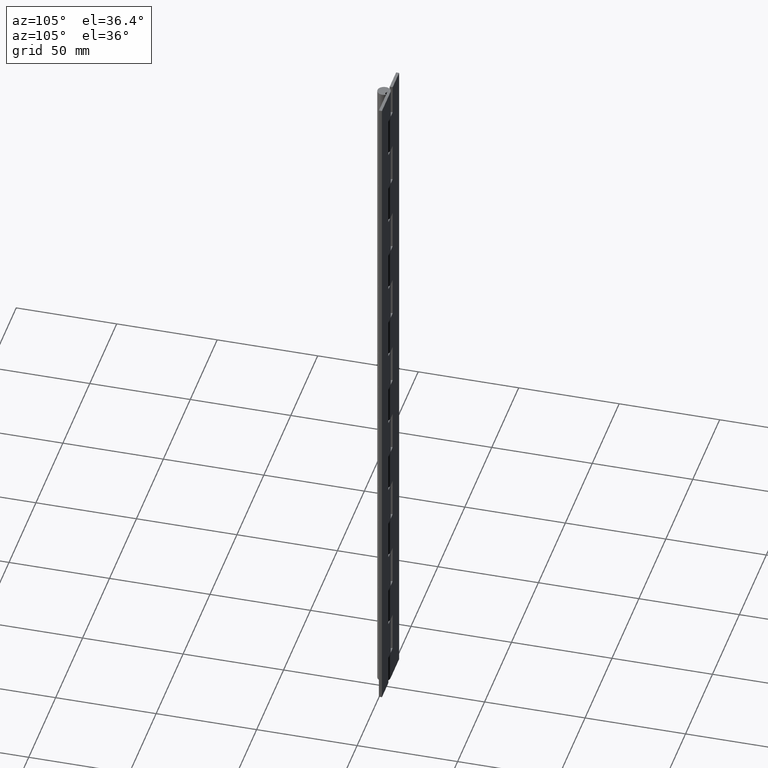
[diagram: clean part render]
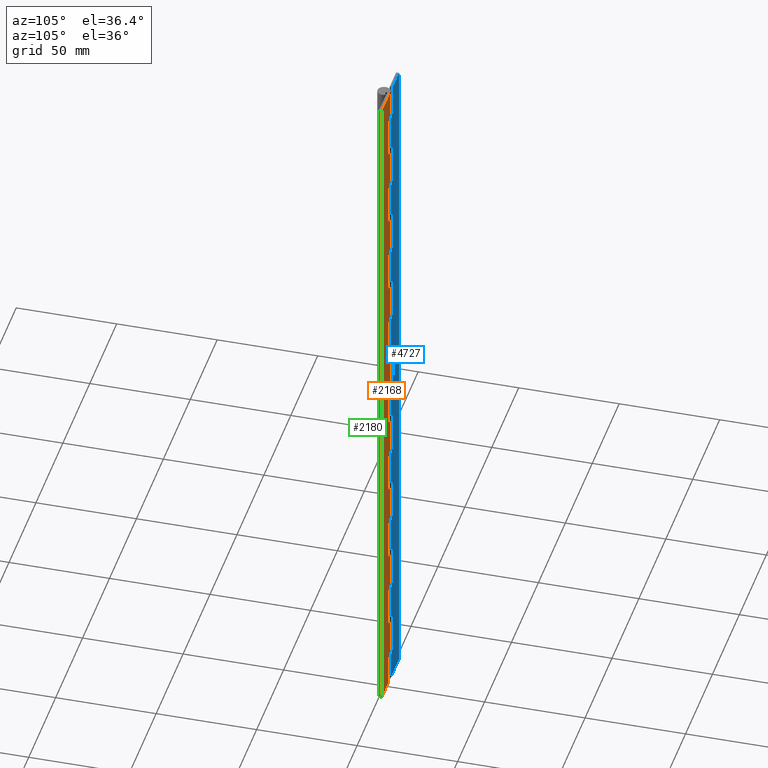
[diagram: same view with three faces highlighted in distinct colors, each labeled with its STEP entity id]
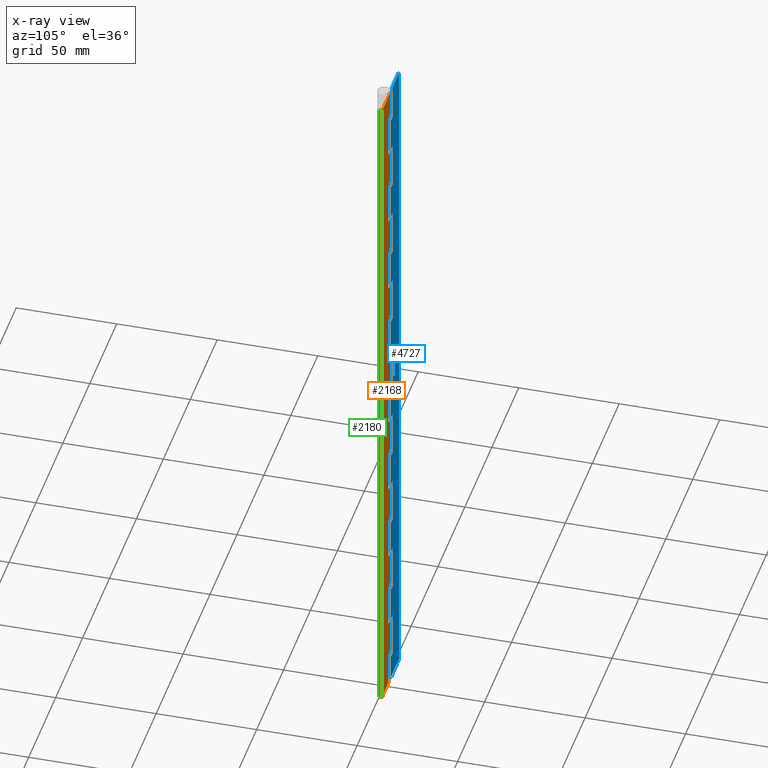
[diagram: x-ray of the same camera — body ghosted, the three highlighted faces saturated]
A machine part, auxiliary view with three faces highlighted in distinct colors.
The next image is the same camera in x-ray (body ghosted, the three faces saturated) — at least one of them is partly hidden behind the body in this view.
Their STEP definitions:

[orange] entity #2168 — the highlighted face is a freeform B-spline surface patch.
#302=CARTESIAN_POINT('',(4.0,3.250000000000000,14.999991999999960));
#303=VERTEX_POINT('',#302);
#309=CARTESIAN_POINT('',(4.0,3.250000000000000,0.0));
#310=VERTEX_POINT('',#309);
#311=CARTESIAN_POINT('',(4.0,3.250000000000000,14.999991999999960));
#312=CARTESIAN_POINT('',(4.0,3.250000000000000,0.0));
#313=QUASI_UNIFORM_CURVE('',1,(#311,#312),.UNSPECIFIED.,.F.,.U.);
#314=EDGE_CURVE('',#303,#310,#313,.T.);
#336=CARTESIAN_POINT('',(0.0,3.250000000000000,14.999991999999960));
#337=VERTEX_POINT('',#336);
#338=CARTESIAN_POINT('',(0.0,3.250000000000000,14.999991999999960));
#339=CARTESIAN_POINT('',(4.0,3.250000000000000,14.999991999999960));
#340=QUASI_UNIFORM_CURVE('',1,(#338,#339),.UNSPECIFIED.,.F.,.U.);
#341=EDGE_CURVE('',#337,#303,#340,.T.);
#406=CARTESIAN_POINT('',(0.0,3.250000000000000,54.999991999999899));
#407=VERTEX_POINT('',#406);
#408=CARTESIAN_POINT('',(4.0,3.250000000000000,54.999991999999899));
#409=VERTEX_POINT('',#408);
#410=CARTESIAN_POINT('',(0.0,3.250000000000000,54.999991999999899));
#411=CARTESIAN_POINT('',(4.0,3.250000000000000,54.999991999999899));
#412=QUASI_UNIFORM_CURVE('',1,(#410,#411),.UNSPECIFIED.,.F.,.U.);
#413=EDGE_CURVE('',#407,#409,#412,.T.);
#486=CARTESIAN_POINT('',(0.0,3.250000000000000,34.999991999999800));
#487=VERTEX_POINT('',#486);
#542=CARTESIAN_POINT('',(4.0,3.250000000000000,34.999991999999800));
#543=VERTEX_POINT('',#542);
#549=CARTESIAN_POINT('',(4.0,3.250000000000000,34.999991999999800));
#550=CARTESIAN_POINT('',(0.0,3.250000000000000,34.999991999999800));
#551=QUASI_UNIFORM_CURVE('',1,(#549,#550),.UNSPECIFIED.,.F.,.U.);
#552=EDGE_CURVE('',#543,#487,#551,.T.);
#563=CARTESIAN_POINT('',(4.0,3.250000000000000,54.999991999999899));
#564=CARTESIAN_POINT('',(4.0,3.250000000000000,34.999991999999800));
#565=QUASI_UNIFORM_CURVE('',1,(#563,#564),.UNSPECIFIED.,.F.,.U.);
#566=EDGE_CURVE('',#409,#543,#565,.T.);
#582=CARTESIAN_POINT('',(0.0,3.250000000000000,94.999992000000006));
#583=VERTEX_POINT('',#582);
#584=CARTESIAN_POINT('',(4.0,3.250000000000000,94.999992000000006));
#585=VERTEX_POINT('',#584);
#586=CARTESIAN_POINT('',(0.0,3.250000000000000,94.999992000000006));
#587=CARTESIAN_POINT('',(4.0,3.250000000000000,94.999992000000006));
#588=QUASI_UNIFORM_CURVE('',1,(#586,#587),.UNSPECIFIED.,.F.,.U.);
#589=EDGE_CURVE('',#583,#585,#588,.T.);
#662=CARTESIAN_POINT('',(0.0,3.250000000000000,74.999991999999892));
#663=VERTEX_POINT('',#662);
#718=CARTESIAN_POINT('',(4.0,3.250000000000000,74.999991999999892));
#719=VERTEX_POINT('',#718);
#725=CARTESIAN_POINT('',(4.0,3.250000000000000,74.999991999999892));
#726=CARTESIAN_POINT('',(0.0,3.250000000000000,74.999991999999892));
#727=QUASI_UNIFORM_CURVE('',1,(#725,#726),.UNSPECIFIED.,.F.,.U.);
#728=EDGE_CURVE('',#719,#663,#727,.T.);
#739=CARTESIAN_POINT('',(4.0,3.250000000000000,94.999992000000006));
#740=CARTESIAN_POINT('',(4.0,3.250000000000000,74.999991999999892));
#741=QUASI_UNIFORM_CURVE('',1,(#739,#740),.UNSPECIFIED.,.F.,.U.);
#742=EDGE_CURVE('',#585,#719,#741,.T.);
#758=CARTESIAN_POINT('',(0.0,3.250000000000000,134.999991999999990));
#759=VERTEX_POINT('',#758);
#760=CARTESIAN_POINT('',(4.0,3.250000000000000,134.999991999999990));
#761=VERTEX_POINT('',#760);
#762=CARTESIAN_POINT('',(0.0,3.250000000000000,134.999991999999990));
#763=CARTESIAN_POINT('',(4.0,3.250000000000000,134.999991999999990));
#764=QUASI_UNIFORM_CURVE('',1,(#762,#763),.UNSPECIFIED.,.F.,.U.);
#765=EDGE_CURVE('',#759,#761,#764,.T.);
#838=CARTESIAN_POINT('',(0.0,3.250000000000000,114.999991999999810));
#839=VERTEX_POINT('',#838);
#894=CARTESIAN_POINT('',(4.0,3.250000000000000,114.999991999999810));
#895=VERTEX_POINT('',#894);
#901=CARTESIAN_POINT('',(4.0,3.250000000000000,114.999991999999810));
#902=CARTESIAN_POINT('',(0.0,3.250000000000000,114.999991999999810));
#903=QUASI_UNIFORM_CURVE('',1,(#901,#902),.UNSPECIFIED.,.F.,.U.);
#904=EDGE_CURVE('',#895,#839,#903,.T.);
#915=CARTESIAN_POINT('',(4.0,3.250000000000000,134.999991999999990));
#916=CARTESIAN_POINT('',(4.0,3.250000000000000,114.999991999999810));
#917=QUASI_UNIFORM_CURVE('',1,(#915,#916),.UNSPECIFIED.,.F.,.U.);
#918=EDGE_CURVE('',#761,#895,#917,.T.);
#934=CARTESIAN_POINT('',(0.0,3.250000000000000,174.999991999999990));
#935=VERTEX_POINT('',#934);
#936=CARTESIAN_POINT('',(4.0,3.250000000000000,174.999991999999990));
#937=VERTEX_POINT('',#936);
#938=CARTESIAN_POINT('',(0.0,3.250000000000000,174.999991999999990));
#939=CARTESIAN_POINT('',(4.0,3.250000000000000,174.999991999999990));
#940=QUASI_UNIFORM_CURVE('',1,(#938,#939),.UNSPECIFIED.,.F.,.U.);
#941=EDGE_CURVE('',#935,#937,#940,.T.);
#1014=CARTESIAN_POINT('',(0.0,3.250000000000000,154.999991999999990));
#1015=VERTEX_POINT('',#1014);
#1070=CARTESIAN_POINT('',(4.0,3.250000000000000,154.999991999999990));
#1071=VERTEX_POINT('',#1070);
#1077=CARTESIAN_POINT('',(4.0,3.250000000000000,154.999991999999990));
#1078=CARTESIAN_POINT('',(0.0,3.250000000000000,154.999991999999990));
#1079=QUASI_UNIFORM_CURVE('',1,(#1077,#1078),.UNSPECIFIED.,.F.,.U.);
#1080=EDGE_CURVE('',#1071,#1015,#1079,.T.);
#1091=CARTESIAN_POINT('',(4.0,3.250000000000000,174.999991999999990));
#1092=CARTESIAN_POINT('',(4.0,3.250000000000000,154.999991999999990));
#1093=QUASI_UNIFORM_CURVE('',1,(#1091,#1092),.UNSPECIFIED.,.F.,.U.);
#1094=EDGE_CURVE('',#937,#1071,#1093,.T.);
#1110=CARTESIAN_POINT('',(0.0,3.250000000000000,214.999991999999990));
#1111=VERTEX_POINT('',#1110);
#1112=CARTESIAN_POINT('',(4.0,3.250000000000000,214.999991999999990));
#1113=VERTEX_POINT('',#1112);
#1114=CARTESIAN_POINT('',(0.0,3.250000000000000,214.999991999999990));
#1115=CARTESIAN_POINT('',(4.0,3.250000000000000,214.999991999999990));
#1116=QUASI_UNIFORM_CURVE('',1,(#1114,#1115),.UNSPECIFIED.,.F.,.U.);
#1117=EDGE_CURVE('',#1111,#1113,#1116,.T.);
#1190=CARTESIAN_POINT('',(0.0,3.250000000000000,194.999991999999990));
#1191=VERTEX_POINT('',#1190);
#1246=CARTESIAN_POINT('',(4.0,3.250000000000000,194.999991999999990));
#1247=VERTEX_POINT('',#1246);
#1253=CARTESIAN_POINT('',(4.0,3.250000000000000,194.999991999999990));
#1254=CARTESIAN_POINT('',(0.0,3.250000000000000,194.999991999999990));
#1255=QUASI_UNIFORM_CURVE('',1,(#1253,#1254),.UNSPECIFIED.,.F.,.U.);
#1256=EDGE_CURVE('',#1247,#1191,#1255,.T.);
#1267=CARTESIAN_POINT('',(4.0,3.250000000000000,214.999991999999990));
#1268=CARTESIAN_POINT('',(4.0,3.250000000000000,194.999991999999990));
#1269=QUASI_UNIFORM_CURVE('',1,(#1267,#1268),.UNSPECIFIED.,.F.,.U.);
#1270=EDGE_CURVE('',#1113,#1247,#1269,.T.);
#1286=CARTESIAN_POINT('',(0.0,3.250000000000000,254.999991999999990));
#1287=VERTEX_POINT('',#1286);
#1288=CARTESIAN_POINT('',(4.0,3.250000000000000,254.999991999999990));
#1289=VERTEX_POINT('',#1288);
#1290=CARTESIAN_POINT('',(0.0,3.250000000000000,254.999991999999990));
#1291=CARTESIAN_POINT('',(4.0,3.250000000000000,254.999991999999990));
#1292=QUASI_UNIFORM_CURVE('',1,(#1290,#1291),.UNSPECIFIED.,.F.,.U.);
#1293=EDGE_CURVE('',#1287,#1289,#1292,.T.);
#1366=CARTESIAN_POINT('',(0.0,3.250000000000000,234.999991999999990));
#1367=VERTEX_POINT('',#1366);
#1422=CARTESIAN_POINT('',(4.0,3.250000000000000,234.999991999999990));
#1423=VERTEX_POINT('',#1422);
#1429=CARTESIAN_POINT('',(4.0,3.250000000000000,234.999991999999990));
#1430=CARTESIAN_POINT('',(0.0,3.250000000000000,234.999991999999990));
#1431=QUASI_UNIFORM_CURVE('',1,(#1429,#1430),.UNSPECIFIED.,.F.,.U.);
#1432=EDGE_CURVE('',#1423,#1367,#1431,.T.);
#1443=CARTESIAN_POINT('',(4.0,3.250000000000000,254.999991999999990));
#1444=CARTESIAN_POINT('',(4.0,3.250000000000000,234.999991999999990));
#1445=QUASI_UNIFORM_CURVE('',1,(#1443,#1444),.UNSPECIFIED.,.F.,.U.);
#1446=EDGE_CURVE('',#1289,#1423,#1445,.T.);
#1462=CARTESIAN_POINT('',(0.0,3.250000000000000,294.999992000000020));
#1463=VERTEX_POINT('',#1462);
#1464=CARTESIAN_POINT('',(4.0,3.250000000000000,294.999992000000020));
#1465=VERTEX_POINT('',#1464);
#1466=CARTESIAN_POINT('',(0.0,3.250000000000000,294.999992000000020));
#1467=CARTESIAN_POINT('',(4.0,3.250000000000000,294.999992000000020));
#1468=QUASI_UNIFORM_CURVE('',1,(#1466,#1467),.UNSPECIFIED.,.F.,.U.);
#1469=EDGE_CURVE('',#1463,#1465,#1468,.T.);
#1542=CARTESIAN_POINT('',(0.0,3.250000000000000,274.999992000000020));
#1543=VERTEX_POINT('',#1542);
#1598=CARTESIAN_POINT('',(4.0,3.250000000000000,274.999992000000020));
#1599=VERTEX_POINT('',#1598);
#1605=CARTESIAN_POINT('',(4.0,3.250000000000000,274.999992000000020));
#1606=CARTESIAN_POINT('',(0.0,3.250000000000000,274.999992000000020));
#1607=QUASI_UNIFORM_CURVE('',1,(#1605,#1606),.UNSPECIFIED.,.F.,.U.);
#1608=EDGE_CURVE('',#1599,#1543,#1607,.T.);
#1619=CARTESIAN_POINT('',(4.0,3.250000000000000,294.999992000000020));
#1620=CARTESIAN_POINT('',(4.0,3.250000000000000,274.999992000000020));
#1621=QUASI_UNIFORM_CURVE('',1,(#1619,#1620),.UNSPECIFIED.,.F.,.U.);
#1622=EDGE_CURVE('',#1465,#1599,#1621,.T.);
#1638=CARTESIAN_POINT('',(0.0,3.250000000000000,334.999992000000020));
#1639=VERTEX_POINT('',#1638);
#1640=CARTESIAN_POINT('',(4.0,3.250000000000000,334.999992000000020));
#1641=VERTEX_POINT('',#1640);
#1642=CARTESIAN_POINT('',(0.0,3.250000000000000,334.999992000000020));
#1643=CARTESIAN_POINT('',(4.0,3.250000000000000,334.999992000000020));
#1644=QUASI_UNIFORM_CURVE('',1,(#1642,#1643),.UNSPECIFIED.,.F.,.U.);
#1645=EDGE_CURVE('',#1639,#1641,#1644,.T.);
#1718=CARTESIAN_POINT('',(0.0,3.250000000000000,314.999992000000020));
#1719=VERTEX_POINT('',#1718);
#1774=CARTESIAN_POINT('',(4.0,3.250000000000000,314.999992000000020));
#1775=VERTEX_POINT('',#1774);
#1781=CARTESIAN_POINT('',(4.0,3.250000000000000,314.999992000000020));
#1782=CARTESIAN_POINT('',(0.0,3.250000000000000,314.999992000000020));
#1783=QUASI_UNIFORM_CURVE('',1,(#1781,#1782),.UNSPECIFIED.,.F.,.U.);
#1784=EDGE_CURVE('',#1775,#1719,#1783,.T.);
#1795=CARTESIAN_POINT('',(4.0,3.250000000000000,334.999992000000020));
#1796=CARTESIAN_POINT('',(4.0,3.250000000000000,314.999992000000020));
#1797=QUASI_UNIFORM_CURVE('',1,(#1795,#1796),.UNSPECIFIED.,.F.,.U.);
#1798=EDGE_CURVE('',#1641,#1775,#1797,.T.);
#1822=CARTESIAN_POINT('',(16.0,3.250000000000000,0.0));
#1823=VERTEX_POINT('',#1822);
#1824=CARTESIAN_POINT('',(16.0,3.250000000000000,0.0));
#1825=CARTESIAN_POINT('',(4.0,3.250000000000000,0.0));
#1826=QUASI_UNIFORM_CURVE('',1,(#1824,#1825),.UNSPECIFIED.,.F.,.U.);
#1827=EDGE_CURVE('',#1823,#310,#1826,.T.);
#1844=CARTESIAN_POINT('',(16.0,3.250000000000000,349.999992000000020));
#1845=VERTEX_POINT('',#1844);
#1851=CARTESIAN_POINT('',(0.0,3.250000000000000,349.999992000000020));
#1852=VERTEX_POINT('',#1851);
#1853=CARTESIAN_POINT('',(16.0,3.250000000000000,349.999992000000020));
#1854=CARTESIAN_POINT('',(0.0,3.250000000000000,349.999992000000020));
#1855=QUASI_UNIFORM_CURVE('',1,(#1853,#1854),.UNSPECIFIED.,.F.,.U.);
#1856=EDGE_CURVE('',#1845,#1852,#1855,.T.);
#2072=CARTESIAN_POINT('',(0.0,3.250000000000000,34.999991999999800));
#2073=CARTESIAN_POINT('',(0.0,3.250000000000000,14.999991999999960));
#2074=QUASI_UNIFORM_CURVE('',1,(#2072,#2073),.UNSPECIFIED.,.F.,.U.);
#2075=EDGE_CURVE('',#487,#337,#2074,.T.);
#2087=CARTESIAN_POINT('',(-0.799199968988895,3.250000000000000,367.482500778680670));
#2088=CARTESIAN_POINT('',(-0.799199968988895,3.250000000000000,-17.482508778680579));
#2089=CARTESIAN_POINT('',(16.799200398142339,3.250000000000000,367.482500778680670));
#2090=CARTESIAN_POINT('',(16.799200398142339,3.250000000000000,-17.482508778680579));
#2091=B_SPLINE_SURFACE_WITH_KNOTS('',1,1,((#2087,#2089),(#2088,#2090)),.UNSPECIFIED.,.F.,.F.,.U.,(2,2),(2,2),(0.0,384.965009557361330),(0.0,17.598400367131230),.UNSPECIFIED.);
#2092=ORIENTED_EDGE('',*,*,#1827,.T.);
#2093=ORIENTED_EDGE('',*,*,#314,.F.);
#2094=ORIENTED_EDGE('',*,*,#341,.F.);
#2095=ORIENTED_EDGE('',*,*,#2075,.F.);
#2096=ORIENTED_EDGE('',*,*,#552,.F.);
#2097=ORIENTED_EDGE('',*,*,#566,.F.);
#2098=ORIENTED_EDGE('',*,*,#413,.F.);
#2099=CARTESIAN_POINT('',(0.0,3.250000000000000,74.999991999999892));
#2100=CARTESIAN_POINT('',(0.0,3.250000000000000,54.999991999999899));
#2101=QUASI_UNIFORM_CURVE('',1,(#2099,#2100),.UNSPECIFIED.,.F.,.U.);
#2102=EDGE_CURVE('',#663,#407,#2101,.T.);
#2103=ORIENTED_EDGE('',*,*,#2102,.F.);
#2104=ORIENTED_EDGE('',*,*,#728,.F.);
#2105=ORIENTED_EDGE('',*,*,#742,.F.);
#2106=ORIENTED_EDGE('',*,*,#589,.F.);
#2107=CARTESIAN_POINT('',(0.0,3.250000000000000,114.999991999999810));
#2108=CARTESIAN_POINT('',(0.0,3.250000000000000,94.999992000000006));
#2109=QUASI_UNIFORM_CURVE('',1,(#2107,#2108),.UNSPECIFIED.,.F.,.U.);
#2110=EDGE_CURVE('',#839,#583,#2109,.T.);
#2111=ORIENTED_EDGE('',*,*,#2110,.F.);
#2112=ORIENTED_EDGE('',*,*,#904,.F.);
#2113=ORIENTED_EDGE('',*,*,#918,.F.);
#2114=ORIENTED_EDGE('',*,*,#765,.F.);
#2115=CARTESIAN_POINT('',(0.0,3.250000000000000,154.999991999999990));
#2116=CARTESIAN_POINT('',(0.0,3.250000000000000,134.999991999999990));
#2117=QUASI_UNIFORM_CURVE('',1,(#2115,#2116),.UNSPECIFIED.,.F.,.U.);
#2118=EDGE_CURVE('',#1015,#759,#2117,.T.);
#2119=ORIENTED_EDGE('',*,*,#2118,.F.);
#2120=ORIENTED_EDGE('',*,*,#1080,.F.);
#2121=ORIENTED_EDGE('',*,*,#1094,.F.);
#2122=ORIENTED_EDGE('',*,*,#941,.F.);
#2123=CARTESIAN_POINT('',(0.0,3.250000000000000,194.999991999999990));
#2124=CARTESIAN_POINT('',(0.0,3.250000000000000,174.999991999999990));
#2125=QUASI_UNIFORM_CURVE('',1,(#2123,#2124),.UNSPECIFIED.,.F.,.U.);
#2126=EDGE_CURVE('',#1191,#935,#2125,.T.);
#2127=ORIENTED_EDGE('',*,*,#2126,.F.);
#2128=ORIENTED_EDGE('',*,*,#1256,.F.);
#2129=ORIENTED_EDGE('',*,*,#1270,.F.);
#2130=ORIENTED_EDGE('',*,*,#1117,.F.);
#2131=CARTESIAN_POINT('',(0.0,3.250000000000000,234.999991999999990));
#2132=CARTESIAN_POINT('',(0.0,3.250000000000000,214.999991999999990));
#2133=QUASI_UNIFORM_CURVE('',1,(#2131,#2132),.UNSPECIFIED.,.F.,.U.);
#2134=EDGE_CURVE('',#1367,#1111,#2133,.T.);
#2135=ORIENTED_EDGE('',*,*,#2134,.F.);
#2136=ORIENTED_EDGE('',*,*,#1432,.F.);
#2137=ORIENTED_EDGE('',*,*,#1446,.F.);
#2138=ORIENTED_EDGE('',*,*,#1293,.F.);
#2139=CARTESIAN_POINT('',(0.0,3.250000000000000,274.999992000000020));
#2140=CARTESIAN_POINT('',(0.0,3.250000000000000,254.999991999999990));
#2141=QUASI_UNIFORM_CURVE('',1,(#2139,#2140),.UNSPECIFIED.,.F.,.U.);
#2142=EDGE_CURVE('',#1543,#1287,#2141,.T.);
#2143=ORIENTED_EDGE('',*,*,#2142,.F.);
#2144=ORIENTED_EDGE('',*,*,#1608,.F.);
#2145=ORIENTED_EDGE('',*,*,#1622,.F.);
#2146=ORIENTED_EDGE('',*,*,#1469,.F.);
#2147=CARTESIAN_POINT('',(0.0,3.250000000000000,314.999992000000020));
#2148=CARTESIAN_POINT('',(0.0,3.250000000000000,294.999992000000020));
#2149=QUASI_UNIFORM_CURVE('',1,(#2147,#2148),.UNSPECIFIED.,.F.,.U.);
#2150=EDGE_CURVE('',#1719,#1463,#2149,.T.);
#2151=ORIENTED_EDGE('',*,*,#2150,.F.);
#2152=ORIENTED_EDGE('',*,*,#1784,.F.);
#2153=ORIENTED_EDGE('',*,*,#1798,.F.);
#2154=ORIENTED_EDGE('',*,*,#1645,.F.);
#2155=CARTESIAN_POINT('',(0.0,3.250000000000000,349.999992000000020));
#2156=CARTESIAN_POINT('',(0.0,3.250000000000000,334.999992000000020));
#2157=QUASI_UNIFORM_CURVE('',1,(#2155,#2156),.UNSPECIFIED.,.F.,.U.);
#2158=EDGE_CURVE('',#1852,#1639,#2157,.T.);
#2159=ORIENTED_EDGE('',*,*,#2158,.F.);
#2160=ORIENTED_EDGE('',*,*,#1856,.F.);
#2161=CARTESIAN_POINT('',(16.0,3.250000000000000,349.999992000000020));
#2162=CARTESIAN_POINT('',(16.0,3.250000000000000,0.0));
#2163=QUASI_UNIFORM_CURVE('',1,(#2161,#2162),.UNSPECIFIED.,.F.,.U.);
#2164=EDGE_CURVE('',#1845,#1823,#2163,.T.);
#2165=ORIENTED_EDGE('',*,*,#2164,.T.);
#2166=EDGE_LOOP('',(#2092,#2093,#2094,#2095,#2096,#2097,#2098,#2103,#2104,#2105,#2106,#2111,#2112,#2113,#2114,#2119,#2120,#2121,#2122,#2127,#2128,#2129,#2130,#2135,#2136,#2137,#2138,#2143,#2144,#2145,#2146,#2151,#2152,#2153,#2154,#2159,#2160,#2165));
#2167=FACE_OUTER_BOUND('',#2166,.T.);
#2168=ADVANCED_FACE('',(#2167),#2091,.F.);

[blue] entity #4727 — the highlighted face is a freeform B-spline surface patch.
#2849=CARTESIAN_POINT('',(1.989998E-016,3.250000000000000,14.999991999999960));
#2850=VERTEX_POINT('',#2849);
#2870=CARTESIAN_POINT('',(-4.0,3.250000000000000,14.999991999999960));
#2871=VERTEX_POINT('',#2870);
#2872=CARTESIAN_POINT('',(1.989998E-016,3.250000000000000,14.999991999999960));
#2873=CARTESIAN_POINT('',(-4.0,3.250000000000000,14.999991999999960));
#2874=QUASI_UNIFORM_CURVE('',1,(#2872,#2873),.UNSPECIFIED.,.F.,.U.);
#2875=EDGE_CURVE('',#2850,#2871,#2874,.T.);
#2925=CARTESIAN_POINT('',(1.989998E-016,3.250000000000000,34.999991999999999));
#2926=VERTEX_POINT('',#2925);
#2983=CARTESIAN_POINT('',(-4.0,3.250000000000000,34.999991999999999));
#2984=VERTEX_POINT('',#2983);
#2990=CARTESIAN_POINT('',(-4.0,3.250000000000000,34.999991999999999));
#2991=CARTESIAN_POINT('',(1.989998E-016,3.250000000000000,34.999991999999999));
#2992=QUASI_UNIFORM_CURVE('',1,(#2990,#2991),.UNSPECIFIED.,.F.,.U.);
#2993=EDGE_CURVE('',#2984,#2926,#2992,.T.);
#3004=CARTESIAN_POINT('',(-4.0,3.250000000000000,14.999991999999960));
#3005=CARTESIAN_POINT('',(-4.0,3.250000000000000,34.999991999999999));
#3006=QUASI_UNIFORM_CURVE('',1,(#3004,#3005),.UNSPECIFIED.,.F.,.U.);
#3007=EDGE_CURVE('',#2871,#2984,#3006,.T.);
#3025=CARTESIAN_POINT('',(1.989998E-016,3.250000000000000,54.999991999999899));
#3026=VERTEX_POINT('',#3025);
#3046=CARTESIAN_POINT('',(-4.0,3.250000000000000,54.999991999999899));
#3047=VERTEX_POINT('',#3046);
#3048=CARTESIAN_POINT('',(1.989998E-016,3.250000000000000,54.999991999999899));
#3049=CARTESIAN_POINT('',(-4.0,3.250000000000000,54.999991999999899));
#3050=QUASI_UNIFORM_CURVE('',1,(#3048,#3049),.UNSPECIFIED.,.F.,.U.);
#3051=EDGE_CURVE('',#3026,#3047,#3050,.T.);
#3101=CARTESIAN_POINT('',(1.989998E-016,3.250000000000000,74.999992000000006));
#3102=VERTEX_POINT('',#3101);
#3159=CARTESIAN_POINT('',(-4.0,3.250000000000000,74.999992000000006));
#3160=VERTEX_POINT('',#3159);
#3166=CARTESIAN_POINT('',(-4.0,3.250000000000000,74.999992000000006));
#3167=CARTESIAN_POINT('',(1.989998E-016,3.250000000000000,74.999992000000006));
#3168=QUASI_UNIFORM_CURVE('',1,(#3166,#3167),.UNSPECIFIED.,.F.,.U.);
#3169=EDGE_CURVE('',#3160,#3102,#3168,.T.);
#3180=CARTESIAN_POINT('',(-4.0,3.250000000000000,54.999991999999899));
#3181=CARTESIAN_POINT('',(-4.0,3.250000000000000,74.999992000000006));
#3182=QUASI_UNIFORM_CURVE('',1,(#3180,#3181),.UNSPECIFIED.,.F.,.U.);
#3183=EDGE_CURVE('',#3047,#3160,#3182,.T.);
#3201=CARTESIAN_POINT('',(1.989998E-016,3.250000000000000,94.999992000000006));
#3202=VERTEX_POINT('',#3201);
#3222=CARTESIAN_POINT('',(-4.0,3.250000000000000,94.999992000000006));
#3223=VERTEX_POINT('',#3222);
#3224=CARTESIAN_POINT('',(1.989998E-016,3.250000000000000,94.999992000000006));
#3225=CARTESIAN_POINT('',(-4.0,3.250000000000000,94.999992000000006));
#3226=QUASI_UNIFORM_CURVE('',1,(#3224,#3225),.UNSPECIFIED.,.F.,.U.);
#3227=EDGE_CURVE('',#3202,#3223,#3226,.T.);
#3277=CARTESIAN_POINT('',(1.989998E-016,3.250000000000000,114.999992000000010));
#3278=VERTEX_POINT('',#3277);
#3335=CARTESIAN_POINT('',(-4.0,3.250000000000000,114.999992000000010));
#3336=VERTEX_POINT('',#3335);
#3342=CARTESIAN_POINT('',(-4.0,3.250000000000000,114.999992000000010));
#3343=CARTESIAN_POINT('',(1.989998E-016,3.250000000000000,114.999992000000010));
#3344=QUASI_UNIFORM_CURVE('',1,(#3342,#3343),.UNSPECIFIED.,.F.,.U.);
#3345=EDGE_CURVE('',#3336,#3278,#3344,.T.);
#3356=CARTESIAN_POINT('',(-4.0,3.250000000000000,94.999992000000006));
#3357=CARTESIAN_POINT('',(-4.0,3.250000000000000,114.999992000000010));
#3358=QUASI_UNIFORM_CURVE('',1,(#3356,#3357),.UNSPECIFIED.,.F.,.U.);
#3359=EDGE_CURVE('',#3223,#3336,#3358,.T.);
#3377=CARTESIAN_POINT('',(1.989998E-016,3.250000000000000,134.999991999999990));
#3378=VERTEX_POINT('',#3377);
#3398=CARTESIAN_POINT('',(-4.0,3.250000000000000,134.999991999999990));
#3399=VERTEX_POINT('',#3398);
#3400=CARTESIAN_POINT('',(1.989998E-016,3.250000000000000,134.999991999999990));
#3401=CARTESIAN_POINT('',(-4.0,3.250000000000000,134.999991999999990));
#3402=QUASI_UNIFORM_CURVE('',1,(#3400,#3401),.UNSPECIFIED.,.F.,.U.);
#3403=EDGE_CURVE('',#3378,#3399,#3402,.T.);
#3453=CARTESIAN_POINT('',(1.989998E-016,3.250000000000000,154.999991999999990));
#3454=VERTEX_POINT('',#3453);
#3511=CARTESIAN_POINT('',(-4.0,3.250000000000000,154.999991999999990));
#3512=VERTEX_POINT('',#3511);
#3518=CARTESIAN_POINT('',(-4.0,3.250000000000000,154.999991999999990));
#3519=CARTESIAN_POINT('',(1.989998E-016,3.250000000000000,154.999991999999990));
#3520=QUASI_UNIFORM_CURVE('',1,(#3518,#3519),.UNSPECIFIED.,.F.,.U.);
#3521=EDGE_CURVE('',#3512,#3454,#3520,.T.);
#3532=CARTESIAN_POINT('',(-4.0,3.250000000000000,134.999991999999990));
#3533=CARTESIAN_POINT('',(-4.0,3.250000000000000,154.999991999999990));
#3534=QUASI_UNIFORM_CURVE('',1,(#3532,#3533),.UNSPECIFIED.,.F.,.U.);
#3535=EDGE_CURVE('',#3399,#3512,#3534,.T.);
#3553=CARTESIAN_POINT('',(1.989998E-016,3.250000000000000,174.999991999999990));
#3554=VERTEX_POINT('',#3553);
#3574=CARTESIAN_POINT('',(-4.0,3.250000000000000,174.999991999999990));
#3575=VERTEX_POINT('',#3574);
#3576=CARTESIAN_POINT('',(1.989998E-016,3.250000000000000,174.999991999999990));
#3577=CARTESIAN_POINT('',(-4.0,3.250000000000000,174.999991999999990));
#3578=QUASI_UNIFORM_CURVE('',1,(#3576,#3577),.UNSPECIFIED.,.F.,.U.);
#3579=EDGE_CURVE('',#3554,#3575,#3578,.T.);
#3629=CARTESIAN_POINT('',(1.989998E-016,3.250000000000000,194.999991999999990));
#3630=VERTEX_POINT('',#3629);
#3687=CARTESIAN_POINT('',(-4.0,3.250000000000000,194.999991999999990));
#3688=VERTEX_POINT('',#3687);
#3694=CARTESIAN_POINT('',(-4.0,3.250000000000000,194.999991999999990));
#3695=CARTESIAN_POINT('',(1.989998E-016,3.250000000000000,194.999991999999990));
#3696=QUASI_UNIFORM_CURVE('',1,(#3694,#3695),.UNSPECIFIED.,.F.,.U.);
#3697=EDGE_CURVE('',#3688,#3630,#3696,.T.);
#3708=CARTESIAN_POINT('',(-4.0,3.250000000000000,174.999991999999990));
#3709=CARTESIAN_POINT('',(-4.0,3.250000000000000,194.999991999999990));
#3710=QUASI_UNIFORM_CURVE('',1,(#3708,#3709),.UNSPECIFIED.,.F.,.U.);
#3711=EDGE_CURVE('',#3575,#3688,#3710,.T.);
#3729=CARTESIAN_POINT('',(1.989998E-016,3.250000000000000,214.999991999999990));
#3730=VERTEX_POINT('',#3729);
#3750=CARTESIAN_POINT('',(-4.0,3.250000000000000,214.999991999999990));
#3751=VERTEX_POINT('',#3750);
#3752=CARTESIAN_POINT('',(1.989998E-016,3.250000000000000,214.999991999999990));
#3753=CARTESIAN_POINT('',(-4.0,3.250000000000000,214.999991999999990));
#3754=QUASI_UNIFORM_CURVE('',1,(#3752,#3753),.UNSPECIFIED.,.F.,.U.);
#3755=EDGE_CURVE('',#3730,#3751,#3754,.T.);
#3805=CARTESIAN_POINT('',(1.989998E-016,3.250000000000000,234.999991999999990));
#3806=VERTEX_POINT('',#3805);
#3863=CARTESIAN_POINT('',(-4.0,3.250000000000000,234.999991999999990));
#3864=VERTEX_POINT('',#3863);
#3870=CARTESIAN_POINT('',(-4.0,3.250000000000000,234.999991999999990));
#3871=CARTESIAN_POINT('',(1.989998E-016,3.250000000000000,234.999991999999990));
#3872=QUASI_UNIFORM_CURVE('',1,(#3870,#3871),.UNSPECIFIED.,.F.,.U.);
#3873=EDGE_CURVE('',#3864,#3806,#3872,.T.);
#3884=CARTESIAN_POINT('',(-4.0,3.250000000000000,214.999991999999990));
#3885=CARTESIAN_POINT('',(-4.0,3.250000000000000,234.999991999999990));
#3886=QUASI_UNIFORM_CURVE('',1,(#3884,#3885),.UNSPECIFIED.,.F.,.U.);
#3887=EDGE_CURVE('',#3751,#3864,#3886,.T.);
#3905=CARTESIAN_POINT('',(1.989998E-016,3.250000000000000,254.999991999999990));
#3906=VERTEX_POINT('',#3905);
#3926=CARTESIAN_POINT('',(-4.0,3.250000000000000,254.999991999999990));
#3927=VERTEX_POINT('',#3926);
#3928=CARTESIAN_POINT('',(1.989998E-016,3.250000000000000,254.999991999999990));
#3929=CARTESIAN_POINT('',(-4.0,3.250000000000000,254.999991999999990));
#3930=QUASI_UNIFORM_CURVE('',1,(#3928,#3929),.UNSPECIFIED.,.F.,.U.);
#3931=EDGE_CURVE('',#3906,#3927,#3930,.T.);
#3981=CARTESIAN_POINT('',(1.989998E-016,3.250000000000000,274.999992000000020));
#3982=VERTEX_POINT('',#3981);
#4039=CARTESIAN_POINT('',(-4.0,3.250000000000000,274.999992000000020));
#4040=VERTEX_POINT('',#4039);
#4046=CARTESIAN_POINT('',(-4.0,3.250000000000000,274.999992000000020));
#4047=CARTESIAN_POINT('',(1.989998E-016,3.250000000000000,274.999992000000020));
#4048=QUASI_UNIFORM_CURVE('',1,(#4046,#4047),.UNSPECIFIED.,.F.,.U.);
#4049=EDGE_CURVE('',#4040,#3982,#4048,.T.);
#4060=CARTESIAN_POINT('',(-4.0,3.250000000000000,254.999991999999990));
#4061=CARTESIAN_POINT('',(-4.0,3.250000000000000,274.999992000000020));
#4062=QUASI_UNIFORM_CURVE('',1,(#4060,#4061),.UNSPECIFIED.,.F.,.U.);
#4063=EDGE_CURVE('',#3927,#4040,#4062,.T.);
#4109=CARTESIAN_POINT('',(0.0,3.250000000000000,294.999992000000020));
#4110=VERTEX_POINT('',#4109);
#4130=CARTESIAN_POINT('',(-4.0,3.250000000000000,294.999992000000020));
#4131=VERTEX_POINT('',#4130);
#4132=CARTESIAN_POINT('',(0.0,3.250000000000000,294.999992000000020));
#4133=CARTESIAN_POINT('',(-4.0,3.250000000000000,294.999992000000020));
#4134=QUASI_UNIFORM_CURVE('',1,(#4132,#4133),.UNSPECIFIED.,.F.,.U.);
#4135=EDGE_CURVE('',#4110,#4131,#4134,.T.);
#4159=CARTESIAN_POINT('',(-4.0,3.250000000000000,314.999992000000020));
#4160=VERTEX_POINT('',#4159);
#4166=CARTESIAN_POINT('',(0.0,3.250000000000000,314.999992000000020));
#4167=VERTEX_POINT('',#4166);
#4168=CARTESIAN_POINT('',(-4.0,3.250000000000000,314.999992000000020));
#4169=CARTESIAN_POINT('',(0.0,3.250000000000000,314.999992000000020));
#4170=QUASI_UNIFORM_CURVE('',1,(#4168,#4169),.UNSPECIFIED.,.F.,.U.);
#4171=EDGE_CURVE('',#4160,#4167,#4170,.T.);
#4236=CARTESIAN_POINT('',(-4.0,3.250000000000000,294.999992000000020));
#4237=CARTESIAN_POINT('',(-4.0,3.250000000000000,314.999992000000020));
#4238=QUASI_UNIFORM_CURVE('',1,(#4236,#4237),.UNSPECIFIED.,.F.,.U.);
#4239=EDGE_CURVE('',#4131,#4160,#4238,.T.);
#4257=CARTESIAN_POINT('',(-4.0,3.250000000000000,334.999992000000020));
#4258=VERTEX_POINT('',#4257);
#4264=CARTESIAN_POINT('',(-4.0,3.250000000000000,349.999992000000020));
#4265=VERTEX_POINT('',#4264);
#4266=CARTESIAN_POINT('',(-4.0,3.250000000000000,334.999992000000020));
#4267=CARTESIAN_POINT('',(-4.0,3.250000000000000,349.999992000000020));
#4268=QUASI_UNIFORM_CURVE('',1,(#4266,#4267),.UNSPECIFIED.,.F.,.U.);
#4269=EDGE_CURVE('',#4258,#4265,#4268,.T.);
#4321=CARTESIAN_POINT('',(0.0,3.250000000000000,334.999992000000020));
#4322=VERTEX_POINT('',#4321);
#4342=CARTESIAN_POINT('',(0.0,3.250000000000000,334.999992000000020));
#4343=CARTESIAN_POINT('',(-4.0,3.250000000000000,334.999992000000020));
#4344=QUASI_UNIFORM_CURVE('',1,(#4342,#4343),.UNSPECIFIED.,.F.,.U.);
#4345=EDGE_CURVE('',#4322,#4258,#4344,.T.);
#4361=CARTESIAN_POINT('',(1.989985E-016,3.250000000000000,0.0));
#4362=VERTEX_POINT('',#4361);
#4363=CARTESIAN_POINT('',(-16.0,3.250000000000000,0.0));
#4364=VERTEX_POINT('',#4363);
#4365=CARTESIAN_POINT('',(1.989985E-016,3.250000000000000,0.0));
#4366=CARTESIAN_POINT('',(-16.0,3.250000000000000,0.0));
#4367=QUASI_UNIFORM_CURVE('',1,(#4365,#4366),.UNSPECIFIED.,.F.,.U.);
#4368=EDGE_CURVE('',#4362,#4364,#4367,.T.);
#4447=CARTESIAN_POINT('',(-16.0,3.250000000000000,349.999992000000020));
#4448=VERTEX_POINT('',#4447);
#4449=CARTESIAN_POINT('',(-4.0,3.250000000000000,349.999992000000020));
#4450=CARTESIAN_POINT('',(-16.0,3.250000000000000,349.999992000000020));
#4451=QUASI_UNIFORM_CURVE('',1,(#4449,#4450),.UNSPECIFIED.,.F.,.U.);
#4452=EDGE_CURVE('',#4265,#4448,#4451,.T.);
#4490=CARTESIAN_POINT('',(0.0,3.250000000000000,334.999992000000020));
#4491=CARTESIAN_POINT('',(0.0,3.250000000000000,314.999992000000020));
#4492=QUASI_UNIFORM_CURVE('',1,(#4490,#4491),.UNSPECIFIED.,.F.,.U.);
#4493=EDGE_CURVE('',#4322,#4167,#4492,.T.);
#4642=CARTESIAN_POINT('',(-16.0,3.250000000000000,349.999992000000020));
#4643=CARTESIAN_POINT('',(-16.0,3.250000000000000,0.0));
#4644=QUASI_UNIFORM_CURVE('',1,(#4642,#4643),.UNSPECIFIED.,.F.,.U.);
#4645=EDGE_CURVE('',#4448,#4364,#4644,.T.);
#4650=CARTESIAN_POINT('',(-16.799199968988891,3.250000000000000,367.482500778680670));
#4651=CARTESIAN_POINT('',(-16.799199968988891,3.250000000000000,-17.482508778680579));
#4652=CARTESIAN_POINT('',(0.799200398142338,3.250000000000000,367.482500778680670));
#4653=CARTESIAN_POINT('',(0.799200398142338,3.250000000000000,-17.482508778680579));
#4654=B_SPLINE_SURFACE_WITH_KNOTS('',1,1,((#4650,#4652),(#4651,#4653)),.UNSPECIFIED.,.F.,.F.,.U.,(2,2),(2,2),(0.0,384.965009557361330),(0.0,17.598400367131230),.UNSPECIFIED.);
#4655=CARTESIAN_POINT('',(1.989998E-016,3.250000000000000,54.999991999999899));
#4656=CARTESIAN_POINT('',(1.989998E-016,3.250000000000000,34.999991999999999));
#4657=QUASI_UNIFORM_CURVE('',1,(#4655,#4656),.UNSPECIFIED.,.F.,.U.);
#4658=EDGE_CURVE('',#3026,#2926,#4657,.T.);
#4659=ORIENTED_EDGE('',*,*,#4658,.T.);
#4660=ORIENTED_EDGE('',*,*,#2993,.F.);
#4661=ORIENTED_EDGE('',*,*,#3007,.F.);
#4662=ORIENTED_EDGE('',*,*,#2875,.F.);
#4663=CARTESIAN_POINT('',(1.989998E-016,3.250000000000000,14.999991999999960));
#4664=CARTESIAN_POINT('',(1.989985E-016,3.250000000000000,0.0));
#4665=QUASI_UNIFORM_CURVE('',1,(#4663,#4664),.UNSPECIFIED.,.F.,.U.);
#4666=EDGE_CURVE('',#2850,#4362,#4665,.T.);
#4667=ORIENTED_EDGE('',*,*,#4666,.T.);
#4668=ORIENTED_EDGE('',*,*,#4368,.T.);
#4669=ORIENTED_EDGE('',*,*,#4645,.F.);
#4670=ORIENTED_EDGE('',*,*,#4452,.F.);
#4671=ORIENTED_EDGE('',*,*,#4269,.F.);
#4672=ORIENTED_EDGE('',*,*,#4345,.F.);
#4673=ORIENTED_EDGE('',*,*,#4493,.T.);
#4674=ORIENTED_EDGE('',*,*,#4171,.F.);
#4675=ORIENTED_EDGE('',*,*,#4239,.F.);
#4676=ORIENTED_EDGE('',*,*,#4135,.F.);
#4677=CARTESIAN_POINT('',(0.0,3.250000000000000,294.999992000000020));
#4678=CARTESIAN_POINT('',(1.989998E-016,3.250000000000000,274.999992000000020));
#4679=QUASI_UNIFORM_CURVE('',1,(#4677,#4678),.UNSPECIFIED.,.F.,.U.);
#4680=EDGE_CURVE('',#4110,#3982,#4679,.T.);
#4681=ORIENTED_EDGE('',*,*,#4680,.T.);
#4682=ORIENTED_EDGE('',*,*,#4049,.F.);
#4683=ORIENTED_EDGE('',*,*,#4063,.F.);
#4684=ORIENTED_EDGE('',*,*,#3931,.F.);
#4685=CARTESIAN_POINT('',(1.989998E-016,3.250000000000000,254.999991999999990));
#4686=CARTESIAN_POINT('',(1.989998E-016,3.250000000000000,234.999991999999990));
#4687=QUASI_UNIFORM_CURVE('',1,(#4685,#4686),.UNSPECIFIED.,.F.,.U.);
#4688=EDGE_CURVE('',#3906,#3806,#4687,.T.);
#4689=ORIENTED_EDGE('',*,*,#4688,.T.);
#4690=ORIENTED_EDGE('',*,*,#3873,.F.);
#4691=ORIENTED_EDGE('',*,*,#3887,.F.);
#4692=ORIENTED_EDGE('',*,*,#3755,.F.);
#4693=CARTESIAN_POINT('',(1.989998E-016,3.250000000000000,214.999991999999990));
#4694=CARTESIAN_POINT('',(1.989998E-016,3.250000000000000,194.999991999999990));
#4695=QUASI_UNIFORM_CURVE('',1,(#4693,#4694),.UNSPECIFIED.,.F.,.U.);
#4696=EDGE_CURVE('',#3730,#3630,#4695,.T.);
#4697=ORIENTED_EDGE('',*,*,#4696,.T.);
#4698=ORIENTED_EDGE('',*,*,#3697,.F.);
#4699=ORIENTED_EDGE('',*,*,#3711,.F.);
#4700=ORIENTED_EDGE('',*,*,#3579,.F.);
#4701=CARTESIAN_POINT('',(1.989998E-016,3.250000000000000,174.999991999999990));
#4702=CARTESIAN_POINT('',(1.989998E-016,3.250000000000000,154.999991999999990));
#4703=QUASI_UNIFORM_CURVE('',1,(#4701,#4702),.UNSPECIFIED.,.F.,.U.);
#4704=EDGE_CURVE('',#3554,#3454,#4703,.T.);
#4705=ORIENTED_EDGE('',*,*,#4704,.T.);
#4706=ORIENTED_EDGE('',*,*,#3521,.F.);
#4707=ORIENTED_EDGE('',*,*,#3535,.F.);
#4708=ORIENTED_EDGE('',*,*,#3403,.F.);
#4709=CARTESIAN_POINT('',(1.989998E-016,3.250000000000000,134.999991999999990));
#4710=CARTESIAN_POINT('',(1.989998E-016,3.250000000000000,114.999992000000010));
#4711=QUASI_UNIFORM_CURVE('',1,(#4709,#4710),.UNSPECIFIED.,.F.,.U.);
#4712=EDGE_CURVE('',#3378,#3278,#4711,.T.);
#4713=ORIENTED_EDGE('',*,*,#4712,.T.);
#4714=ORIENTED_EDGE('',*,*,#3345,.F.);
#4715=ORIENTED_EDGE('',*,*,#3359,.F.);
#4716=ORIENTED_EDGE('',*,*,#3227,.F.);
#4717=CARTESIAN_POINT('',(1.989998E-016,3.250000000000000,94.999992000000006));
#4718=CARTESIAN_POINT('',(1.989998E-016,3.250000000000000,74.999992000000006));
#4719=QUASI_UNIFORM_CURVE('',1,(#4717,#4718),.UNSPECIFIED.,.F.,.U.);
#4720=EDGE_CURVE('',#3202,#3102,#4719,.T.);
#4721=ORIENTED_EDGE('',*,*,#4720,.T.);
#4722=ORIENTED_EDGE('',*,*,#3169,.F.);
#4723=ORIENTED_EDGE('',*,*,#3183,.F.);
#4724=ORIENTED_EDGE('',*,*,#3051,.F.);
#4725=EDGE_LOOP('',(#4659,#4660,#4661,#4662,#4667,#4668,#4669,#4670,#4671,#4672,#4673,#4674,#4675,#4676,#4681,#4682,#4683,#4684,#4689,#4690,#4691,#4692,#4697,#4698,#4699,#4700,#4705,#4706,#4707,#4708,#4713,#4714,#4715,#4716,#4721,#4722,#4723,#4724));
#4726=FACE_OUTER_BOUND('',#4725,.T.);
#4727=ADVANCED_FACE('',(#4726),#4654,.F.);

[green] entity #2180 — the highlighted face is a freeform B-spline surface patch.
#1814=CARTESIAN_POINT('',(16.0,1.750000000000000,0.0));
#1815=VERTEX_POINT('',#1814);
#1822=CARTESIAN_POINT('',(16.0,3.250000000000000,0.0));
#1823=VERTEX_POINT('',#1822);
#1829=CARTESIAN_POINT('',(16.0,1.750000000000000,0.0));
#1830=CARTESIAN_POINT('',(16.0,3.250000000000000,0.0));
#1831=QUASI_UNIFORM_CURVE('',1,(#1829,#1830),.UNSPECIFIED.,.F.,.U.);
#1832=EDGE_CURVE('',#1815,#1823,#1831,.T.);
#1842=CARTESIAN_POINT('',(16.0,1.750000000000000,349.999992000000020));
#1843=VERTEX_POINT('',#1842);
#1844=CARTESIAN_POINT('',(16.0,3.250000000000000,349.999992000000020));
#1845=VERTEX_POINT('',#1844);
#1846=CARTESIAN_POINT('',(16.0,1.750000000000000,349.999992000000020));
#1847=CARTESIAN_POINT('',(16.0,3.250000000000000,349.999992000000020));
#1848=QUASI_UNIFORM_CURVE('',1,(#1846,#1847),.UNSPECIFIED.,.F.,.U.);
#1849=EDGE_CURVE('',#1843,#1845,#1848,.T.);
#1923=CARTESIAN_POINT('',(16.0,1.750000000000000,349.999992000000020));
#1924=CARTESIAN_POINT('',(16.0,1.750000000000000,0.0));
#1925=QUASI_UNIFORM_CURVE('',1,(#1923,#1924),.UNSPECIFIED.,.F.,.U.);
#1926=EDGE_CURVE('',#1843,#1815,#1925,.T.);
#2161=CARTESIAN_POINT('',(16.0,3.250000000000000,349.999992000000020));
#2162=CARTESIAN_POINT('',(16.0,3.250000000000000,0.0));
#2163=QUASI_UNIFORM_CURVE('',1,(#2161,#2162),.UNSPECIFIED.,.F.,.U.);
#2164=EDGE_CURVE('',#1845,#1823,#2163,.T.);
#2169=CARTESIAN_POINT('',(16.0,1.675075002907291,-17.482498922032089));
#2170=CARTESIAN_POINT('',(16.0,1.675075002907291,367.482500309763510));
#2171=CARTESIAN_POINT('',(16.0,3.324925037325844,-17.482498922032089));
#2172=CARTESIAN_POINT('',(16.0,3.324925037325844,367.482500309763510));
#2173=B_SPLINE_SURFACE_WITH_KNOTS('',1,1,((#2169,#2171),(#2170,#2172)),.UNSPECIFIED.,.F.,.F.,.U.,(2,2),(2,2),(0.0,384.964999231795620),(0.041708334948495,0.958291687403247),.UNSPECIFIED.);
#2174=ORIENTED_EDGE('',*,*,#1832,.T.);
#2175=ORIENTED_EDGE('',*,*,#2164,.F.);
#2176=ORIENTED_EDGE('',*,*,#1849,.F.);
#2177=ORIENTED_EDGE('',*,*,#1926,.T.);
#2178=EDGE_LOOP('',(#2174,#2175,#2176,#2177));
#2179=FACE_OUTER_BOUND('',#2178,.T.);
#2180=ADVANCED_FACE('',(#2179),#2173,.F.);